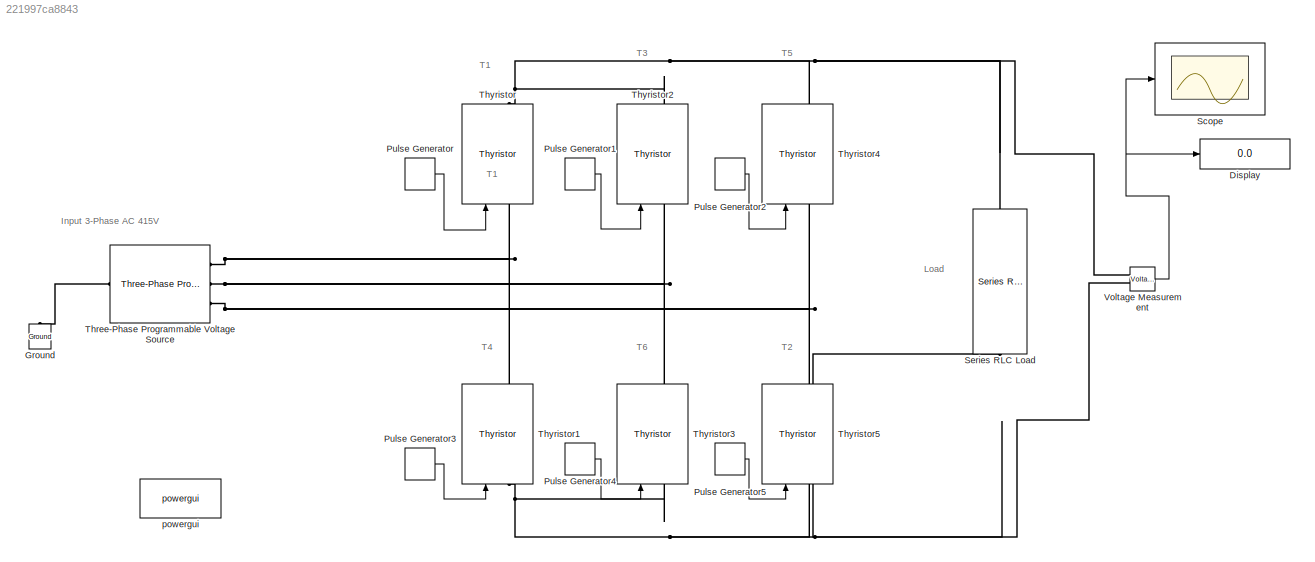
MODEL slx_221997ca8843
KIND model
CONFIG AbsTol = auto
CONFIG EnableMultiTasking = off
CONFIG FixedStep = auto
CONFIG MaxStep = auto
CONFIG MinStep = auto
CONFIG RelTol = 1e-3
CONFIG SampleTimeConstraint = Unconstrained
CONFIG SolverName = VariableStepAuto
CONFIG StartTime = 0.0
CONFIG StopTime = 0.1
BLOCK [Display] Display
  Decimation = 1
  Ports = [1]
BLOCK [Reference] Ground  REF=spsGroundLib/Ground
  NameLocation = right
  Ports = [0, 0, 0, 0, 0, 1]
  SourceBlock = spsGroundLib/Ground
  SourceProductBaseCode = PS
  SourceType = Ground
BLOCK [DiscretePulseGenerator] Pulse Generator
  Amplitude = 5
  Period = 20e-3
  PhaseDelay = 3.33e-3
  Ports = [0, 1]
  PulseType = Time based
  PulseWidth = 35
BLOCK [DiscretePulseGenerator] Pulse Generator1
  Amplitude = 5
  Period = 20e-3
  PhaseDelay = 10e-3
  Ports = [0, 1]
  PulseType = Time based
  PulseWidth = 35
BLOCK [DiscretePulseGenerator] Pulse Generator2
  Amplitude = 5
  Period = 20e-3
  PhaseDelay = 16.67e-3
  Ports = [0, 1]
  PulseType = Time based
  PulseWidth = 35
BLOCK [DiscretePulseGenerator] Pulse Generator3
  Amplitude = 5
  Period = 20e-3
  PhaseDelay = 13.33e-3
  Ports = [0, 1]
  PulseType = Time based
  PulseWidth = 35
BLOCK [DiscretePulseGenerator] Pulse Generator4
  Amplitude = 5
  Period = 20e-3
  PhaseDelay = 20e-3
  Ports = [0, 1]
  PulseType = Time based
  PulseWidth = 35
BLOCK [DiscretePulseGenerator] Pulse Generator5
  Amplitude = 5
  Period = 20e-3
  PhaseDelay = 6.67e-3
  Ports = [0, 1]
  PulseType = Time based
  PulseWidth = 35
BLOCK [Scope] Scope
  Floating = off
  NumInputPorts = 1
  Ports = [1]
  ScopeSpecificationString = Simulink.scopes.TimeScopeBlockCfg('CurrentConfiguration', extmgr.ConfigurationSet(extmgr.Configuration('Core','General UI',true,'FigureColor',[1 1 1]),extmgr.Configuration('Core','Source UI',true),extmgr.Configuration('Sources','WiredSimulink',true),extmgr.Configuration('Visuals','Time Domain',true,'SerializedDisplays',{struct('MinYLimReal','-280.42698','MaxYLimReal','800.42886','YLabelReal','','M...<+1953ch>
BLOCK [Reference] Series RLC Load  REF=spsSeriesRLCLoadLib/Series RLC Load
  AttributesFormatString = \n
  NameLocation = left
  Ports = [0, 0, 0, 0, 0, 1, 1]
  SourceBlock = spsSeriesRLCLoadLib/Series RLC Load
  SourceProductBaseCode = PS
  SourceType = Series RLC Load
BLOCK [Reference] Three-Phase Programmable Voltage Source  REF=spsThreePhaseProgrammableVoltageSourceLib/Three-Phase
Programmable
Voltage Source
  Ports = [0, 0, 0, 0, 0, 1, 3]
  SourceBlock = spsThreePhaseProgrammableVoltageSourceLib/Three-Phase\nProgrammable\nVoltage Source
  SourceProductBaseCode = PS
  SourceType = Three-Phase Programmable Voltage Source
BLOCK [Reference] Thyristor  REF=spsThyristorLib/Thyristor
  NameLocation = right
  Ports = [1, 1, 0, 0, 0, 1, 1]
  SourceBlock = spsThyristorLib/Thyristor
  SourceProductBaseCode = PS
  SourceType = Thyristor
BLOCK [Reference] Thyristor1  REF=spsThyristorLib/Thyristor
  NameLocation = right
  Ports = [1, 1, 0, 0, 0, 1, 1]
  SourceBlock = spsThyristorLib/Thyristor
  SourceProductBaseCode = PS
  SourceType = Thyristor
BLOCK [Reference] Thyristor2  REF=spsThyristorLib/Thyristor
  NameLocation = right
  Ports = [1, 1, 0, 0, 0, 1, 1]
  SourceBlock = spsThyristorLib/Thyristor
  SourceProductBaseCode = PS
  SourceType = Thyristor
BLOCK [Reference] Thyristor3  REF=spsThyristorLib/Thyristor
  NameLocation = right
  Ports = [1, 1, 0, 0, 0, 1, 1]
  SourceBlock = spsThyristorLib/Thyristor
  SourceProductBaseCode = PS
  SourceType = Thyristor
BLOCK [Reference] Thyristor4  REF=spsThyristorLib/Thyristor
  NameLocation = right
  Ports = [1, 1, 0, 0, 0, 1, 1]
  SourceBlock = spsThyristorLib/Thyristor
  SourceProductBaseCode = PS
  SourceType = Thyristor
BLOCK [Reference] Thyristor5  REF=spsThyristorLib/Thyristor
  NameLocation = right
  Ports = [1, 1, 0, 0, 0, 1, 1]
  SourceBlock = spsThyristorLib/Thyristor
  SourceProductBaseCode = PS
  SourceType = Thyristor
BLOCK [Reference] Voltage Measurement  REF=spsVoltageMeasurementLib/Voltage Measurement
  Ports = [0, 1, 0, 0, 0, 2]
  SourceBlock = spsVoltageMeasurementLib/Voltage Measurement
  SourceProductBaseCode = PS
  SourceType = Voltage Measurement
  UserDataPersistent = on
BLOCK [Reference] powergui  REF=spspowerguiLib/powergui
  Ports = []
  Priority = 1
  SourceBlock = spspowerguiLib/powergui
  SourceProductBaseCode = PS
  SourceType = PSB option menu block
ANNOTATION (root): Load
ANNOTATION (root): Input 3-Phase AC 415V
ANNOTATION (root): T1
ANNOTATION (root): T2
ANNOTATION (root): T3
ANNOTATION (root): T4
ANNOTATION (root): T5
ANNOTATION (root): T6
LINE Pulse Generator1:1 -> Thyristor2:1
LINE Pulse Generator2:1 -> Thyristor4:1
LINE Pulse Generator3:1 -> Thyristor1:1
LINE Pulse Generator4:1 -> Thyristor3:1
LINE Pulse Generator5:1 -> Thyristor5:1
LINE Pulse Generator:1 -> Thyristor:1
NET Voltage Measurement:1 -> Display:1, Scope:1
PLINE Ground:LConn1 -- Three-Phase Programmable Voltage Source:LConn1
PNET net1: Series RLC Load:LConn1 -- Thyristor2:RConn1 -- Thyristor4:RConn1 -- Thyristor:RConn1 -- Voltage Measurement:LConn1
PNET net2: Series RLC Load:RConn1 -- Thyristor1:LConn1 -- Thyristor3:LConn1 -- Thyristor5:LConn1 -- Voltage Measurement:LConn2
PNET net3: Three-Phase Programmable Voltage Source:RConn1 -- Thyristor1:RConn1 -- Thyristor:LConn1
PNET net4: Three-Phase Programmable Voltage Source:RConn2 -- Thyristor2:LConn1 -- Thyristor3:RConn1
PNET net5: Three-Phase Programmable Voltage Source:RConn3 -- Thyristor4:LConn1 -- Thyristor5:RConn1
note: NET lines group one-source signal fan-out (src -> all destinations, sorted); 1:1 wires keep LINE; PNET lines group multi-terminal physical nets as a canonical sorted terminal list (undirected conserving connections); 2-terminal nets keep the pairwise PLINE form
